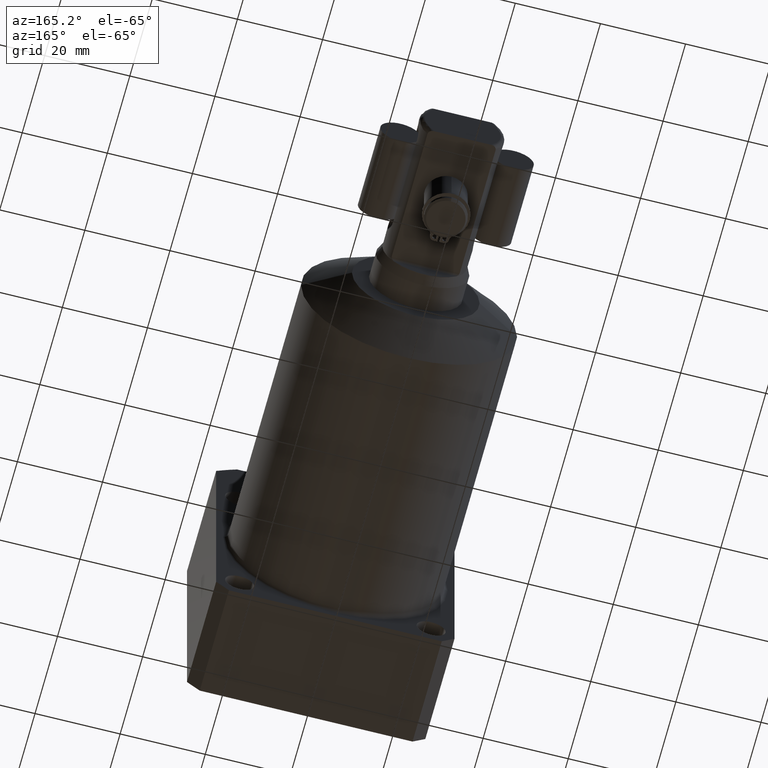
[diagram: clean part render]
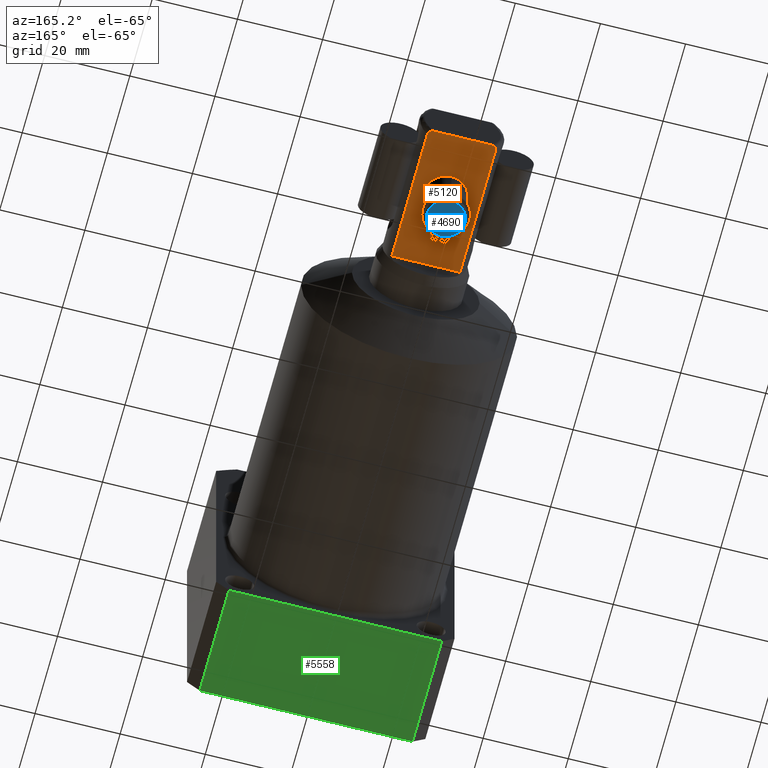
[diagram: same view with three faces highlighted in distinct colors, each labeled with its STEP entity id]
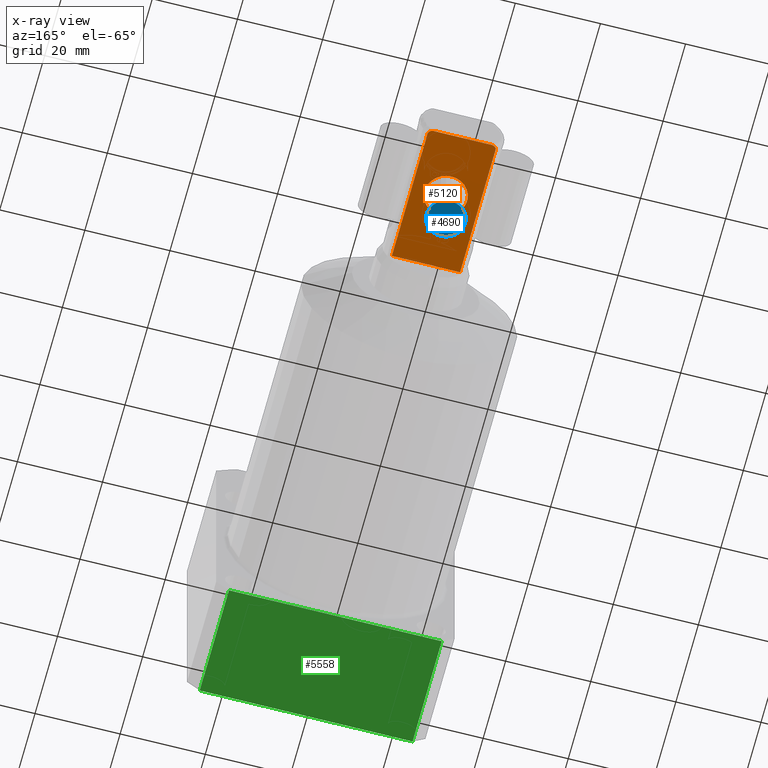
[diagram: x-ray of the same camera — body ghosted, the three highlighted faces saturated]
A machine part, auxiliary view with three faces highlighted in distinct colors.
The next image is the same camera in x-ray (body ghosted, the three faces saturated) — at least one of them is partly hidden behind the body in this view.
Their STEP definitions:

[orange] entity #5120 — the highlighted planar face has unit normal (0, 0, 1).
#940=DIRECTION('',(1.E0,0.E0,0.E0));
#941=VECTOR('',#940,1.341640786500E1);
#942=CARTESIAN_POINT('',(-6.708203932499E0,1.1325E2,-6.E0));
#943=LINE('',#942,#941);
#954=CARTESIAN_POINT('',(-1.312987397586E-14,9.825E1,-6.E0));
#955=DIRECTION('',(0.E0,0.E0,-1.E0));
#956=DIRECTION('',(0.E0,1.E0,0.E0));
#957=AXIS2_PLACEMENT_3D('',#954,#955,#956);
#962=CARTESIAN_POINT('',(-1.312987397586E-14,9.825E1,-6.E0));
#963=DIRECTION('',(0.E0,0.E0,-1.E0));
#964=DIRECTION('',(0.E0,-1.E0,0.E0));
#965=AXIS2_PLACEMENT_3D('',#962,#963,#964);
#1041=DIRECTION('',(0.E0,1.E0,0.E0));
#1042=VECTOR('',#1041,3.17E1);
#1043=CARTESIAN_POINT('',(8.E0,8.055E1,-6.E0));
#1044=LINE('',#1043,#1042);
#1080=DIRECTION('',(0.E0,1.E0,0.E0));
#1081=VECTOR('',#1080,3.17E1);
#1082=CARTESIAN_POINT('',(-8.E0,8.055E1,-6.E0));
#1083=LINE('',#1082,#1081);
#1339=CARTESIAN_POINT('',(-6.708203932499E0,1.1325E2,-6.E0));
#1340=CARTESIAN_POINT('',(-6.815264938685E0,1.1325E2,-6.E0));
#1341=CARTESIAN_POINT('',(-7.024462903261E0,1.132318088923E2,-6.E0));
#1342=CARTESIAN_POINT('',(-7.337276323218E0,1.131412492836E2,-6.E0));
#1343=CARTESIAN_POINT('',(-7.607809104362E0,1.129904971041E2,-6.E0));
#1344=CARTESIAN_POINT('',(-7.823071884016E0,1.127855805250E2,-6.E0));
#1345=CARTESIAN_POINT('',(-7.964763350946E0,1.125346231260E2,-6.E0));
#1346=CARTESIAN_POINT('',(-8.E0,1.123486738198E2,-6.E0));
#1347=CARTESIAN_POINT('',(-8.E0,1.1225E2,-6.E0));
#1389=CARTESIAN_POINT('',(8.E0,1.1225E2,-6.E0));
#1390=CARTESIAN_POINT('',(8.E0,1.123489482638E2,-6.E0));
#1391=CARTESIAN_POINT('',(7.964592638287E0,1.125353504882E2,-6.E0));
#1392=CARTESIAN_POINT('',(7.822091505029E0,1.127869357684E2,-6.E0));
#1393=CARTESIAN_POINT('',(7.606108467063E0,1.129917274285E2,-6.E0));
#1394=CARTESIAN_POINT('',(7.335621143453E0,1.131418658523E2,-6.E0));
#1395=CARTESIAN_POINT('',(7.023661256616E0,1.132318930631E2,-6.E0));
#1396=CARTESIAN_POINT('',(6.814974225532E0,1.1325E2,-6.E0));
#1397=CARTESIAN_POINT('',(6.708203932499E0,1.1325E2,-6.E0));
#3633=DIRECTION('',(1.E0,0.E0,0.E0));
#3634=VECTOR('',#3633,1.6E1);
#3635=CARTESIAN_POINT('',(-8.E0,8.055E1,-6.E0));
#3636=LINE('',#3635,#3634);
#4077=CARTESIAN_POINT('',(8.E0,8.055E1,-6.E0));
#4078=CARTESIAN_POINT('',(8.E0,1.1225E2,-6.E0));
#4079=VERTEX_POINT('',#4077);
#4080=VERTEX_POINT('',#4078);
#4081=CARTESIAN_POINT('',(-8.E0,8.055E1,-6.E0));
#4082=CARTESIAN_POINT('',(-8.E0,1.1225E2,-6.E0));
#4083=VERTEX_POINT('',#4081);
#4084=VERTEX_POINT('',#4082);
#4085=CARTESIAN_POINT('',(-6.708203932499E0,1.1325E2,-6.E0));
#4086=CARTESIAN_POINT('',(6.708203932499E0,1.1325E2,-6.E0));
#4087=VERTEX_POINT('',#4085);
#4088=VERTEX_POINT('',#4086);
#4145=CARTESIAN_POINT('',(-1.421085471520E-14,1.0325E2,-6.E0));
#4146=CARTESIAN_POINT('',(-1.365701588620E-14,9.325E1,-6.E0));
#4147=VERTEX_POINT('',#4145);
#4148=VERTEX_POINT('',#4146);
#5098=CARTESIAN_POINT('',(-5.E1,1.1325E2,-6.E0));
#5099=DIRECTION('',(0.E0,0.E0,1.E0));
#5100=DIRECTION('',(0.E0,-1.E0,0.E0));
#5101=AXIS2_PLACEMENT_3D('',#5098,#5099,#5100);
#5102=PLANE('',#5101);
#5104=ORIENTED_EDGE('',*,*,#5103,.T.);
#5106=ORIENTED_EDGE('',*,*,#5105,.T.);
#5107=ORIENTED_EDGE('',*,*,#5088,.F.);
#5109=ORIENTED_EDGE('',*,*,#5108,.T.);
#5111=ORIENTED_EDGE('',*,*,#5110,.F.);
#5113=ORIENTED_EDGE('',*,*,#5112,.T.);
#5114=EDGE_LOOP('',(#5104,#5106,#5107,#5109,#5111,#5113));
#5115=FACE_OUTER_BOUND('',#5114,.F.);
#5116=ORIENTED_EDGE('',*,*,#5052,.T.);
#5117=ORIENTED_EDGE('',*,*,#4716,.T.);
#5118=EDGE_LOOP('',(#5116,#5117));
#5119=FACE_BOUND('',#5118,.F.);
#958=CIRCLE('',#957,5.E0);
#966=CIRCLE('',#965,5.E0);
#1348=B_SPLINE_CURVE_WITH_KNOTS('',3,(#1339,#1340,#1341,#1342,#1343,#1344,#1345,
#1346,#1347),.UNSPECIFIED.,.F.,.F.,(4,1,1,1,1,1,4),(0.E0,1.666666666667E-1,
3.333333333333E-1,5.E-1,6.666666666667E-1,8.333333333333E-1,1.E0),
.UNSPECIFIED.);
#1398=B_SPLINE_CURVE_WITH_KNOTS('',3,(#1389,#1390,#1391,#1392,#1393,#1394,#1395,
#1396,#1397),.UNSPECIFIED.,.F.,.F.,(4,1,1,1,1,1,4),(0.E0,1.666666666667E-1,
3.333333333333E-1,5.E-1,6.666666666667E-1,8.333333333333E-1,1.E0),
.UNSPECIFIED.);
#4716=EDGE_CURVE('',#4148,#4147,#966,.T.);
#5052=EDGE_CURVE('',#4147,#4148,#958,.T.);
#5088=EDGE_CURVE('',#4087,#4088,#943,.T.);
#5103=EDGE_CURVE('',#4079,#4080,#1044,.T.);
#5105=EDGE_CURVE('',#4080,#4088,#1398,.T.);
#5108=EDGE_CURVE('',#4087,#4084,#1348,.T.);
#5110=EDGE_CURVE('',#4083,#4084,#1083,.T.);
#5112=EDGE_CURVE('',#4083,#4079,#3636,.T.);
#5120=ADVANCED_FACE('',(#5115,#5119),#5102,.F.);

[blue] entity #4690 — the highlighted planar face has unit normal (0, 0, -1).
#451=CARTESIAN_POINT('',(-1.312987397586E-14,9.825E1,-1.825E1));
#452=DIRECTION('',(0.E0,0.E0,1.E0));
#453=DIRECTION('',(0.E0,1.E0,0.E0));
#454=AXIS2_PLACEMENT_3D('',#451,#452,#453);
#459=CARTESIAN_POINT('',(-1.312987397586E-14,9.825E1,-1.825E1));
#460=DIRECTION('',(0.E0,0.E0,-1.E0));
#461=DIRECTION('',(0.E0,1.E0,0.E0));
#462=AXIS2_PLACEMENT_3D('',#459,#460,#461);
#4115=CARTESIAN_POINT('',(-1.276247993612E-14,1.0275E2,-1.825E1));
#4117=VERTEX_POINT('',#4115);
#4131=CARTESIAN_POINT('',(-1.349726801561E-14,9.375E1,-1.825E1));
#4133=VERTEX_POINT('',#4131);
#4681=CARTESIAN_POINT('',(-1.312987397586E-14,9.825E1,-1.825E1));
#4682=DIRECTION('',(0.E0,0.E0,-1.E0));
#4683=DIRECTION('',(0.E0,-1.E0,0.E0));
#4684=AXIS2_PLACEMENT_3D('',#4681,#4682,#4683);
#4685=PLANE('',#4684);
#4686=ORIENTED_EDGE('',*,*,#4663,.T.);
#4687=ORIENTED_EDGE('',*,*,#4674,.F.);
#4688=EDGE_LOOP('',(#4686,#4687));
#4689=FACE_OUTER_BOUND('',#4688,.F.);
#455=CIRCLE('',#454,4.5E0);
#463=CIRCLE('',#462,4.5E0);
#4663=EDGE_CURVE('',#4117,#4133,#455,.T.);
#4674=EDGE_CURVE('',#4117,#4133,#463,.T.);
#4690=ADVANCED_FACE('',(#4689),#4685,.T.);

[green] entity #5558 — the highlighted planar face has unit normal (0, 0, 1).
#1606=DIRECTION('',(-1.E0,0.E0,0.E0));
#1607=VECTOR('',#1606,5.E1);
#1608=CARTESIAN_POINT('',(2.5E1,0.E0,-2.8E1));
#1609=LINE('',#1608,#1607);
#1717=DIRECTION('',(0.E0,1.E0,0.E0));
#1718=VECTOR('',#1717,2.6E1);
#1719=CARTESIAN_POINT('',(2.5E1,-2.6E1,-2.8E1));
#1720=LINE('',#1719,#1718);
#1724=DIRECTION('',(0.E0,1.E0,0.E0));
#1725=VECTOR('',#1724,2.6E1);
#1726=CARTESIAN_POINT('',(-2.5E1,-2.6E1,-2.8E1));
#1727=LINE('',#1726,#1725);
#1812=DIRECTION('',(1.E0,0.E0,0.E0));
#1813=VECTOR('',#1812,5.E1);
#1814=CARTESIAN_POINT('',(-2.5E1,-2.6E1,-2.8E1));
#1815=LINE('',#1814,#1813);
#3763=CARTESIAN_POINT('',(2.5E1,-2.6E1,-2.8E1));
#3764=CARTESIAN_POINT('',(2.5E1,0.E0,-2.8E1));
#3765=VERTEX_POINT('',#3763);
#3766=VERTEX_POINT('',#3764);
#3775=CARTESIAN_POINT('',(-2.5E1,0.E0,-2.8E1));
#3776=VERTEX_POINT('',#3775);
#3777=CARTESIAN_POINT('',(-2.5E1,-2.6E1,-2.8E1));
#3778=VERTEX_POINT('',#3777);
#5545=CARTESIAN_POINT('',(-2.8E1,0.E0,-2.8E1));
#5546=DIRECTION('',(0.E0,0.E0,1.E0));
#5547=DIRECTION('',(1.E0,0.E0,0.E0));
#5548=AXIS2_PLACEMENT_3D('',#5545,#5546,#5547);
#5549=PLANE('',#5548);
#5550=ORIENTED_EDGE('',*,*,#5535,.T.);
#5551=ORIENTED_EDGE('',*,*,#5472,.T.);
#5553=ORIENTED_EDGE('',*,*,#5552,.F.);
#5555=ORIENTED_EDGE('',*,*,#5554,.T.);
#5556=EDGE_LOOP('',(#5550,#5551,#5553,#5555));
#5557=FACE_OUTER_BOUND('',#5556,.F.);
#5472=EDGE_CURVE('',#3766,#3776,#1609,.T.);
#5535=EDGE_CURVE('',#3765,#3766,#1720,.T.);
#5552=EDGE_CURVE('',#3778,#3776,#1727,.T.);
#5554=EDGE_CURVE('',#3778,#3765,#1815,.T.);
#5558=ADVANCED_FACE('',(#5557),#5549,.F.);